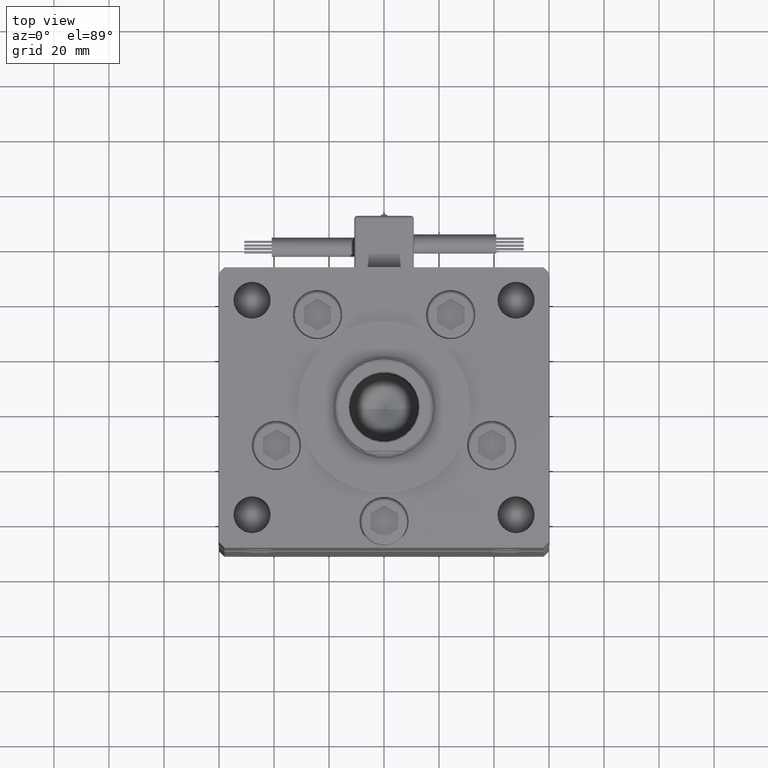
[diagram: clean part render]
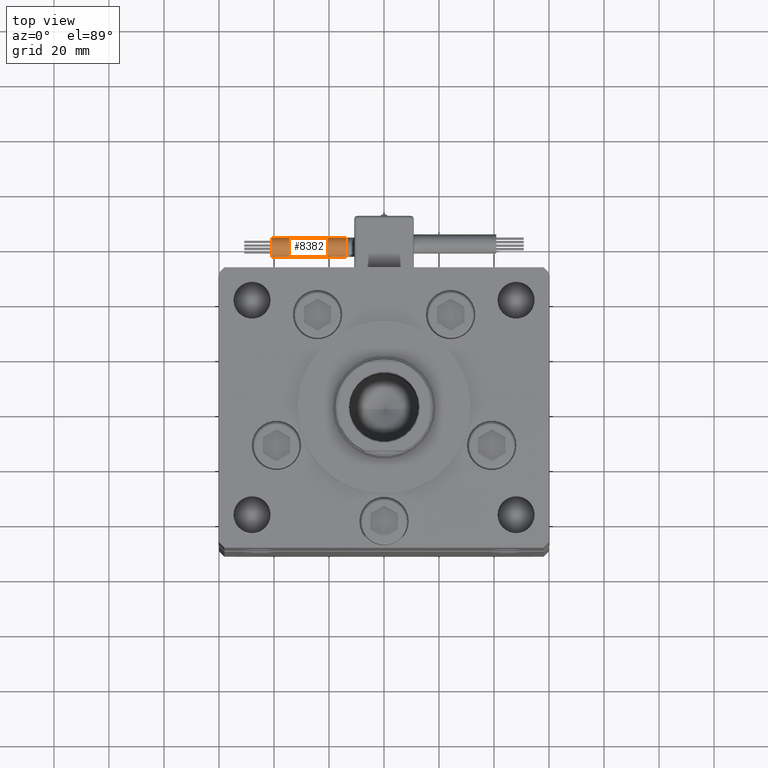
[diagram: same view with one face highlighted and labeled with its STEP entity id]
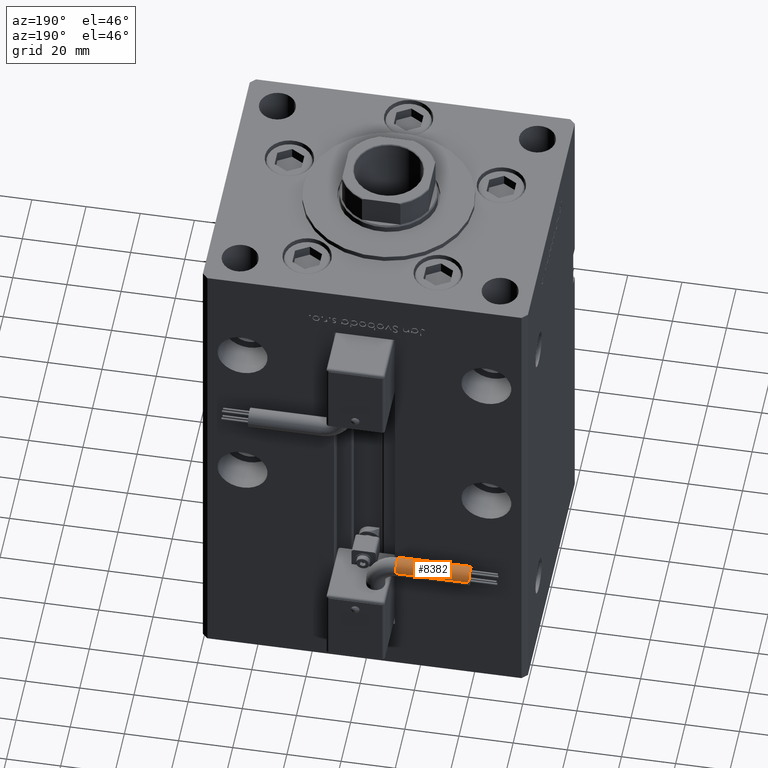
[diagram: same view with one face highlighted and labeled with its STEP entity id]
A machine part, top view. The second image highlights one B-rep face of the part: STEP entity #8382.
A second angle (auxiliary view) of the same face is appended — the face is thin or edge-on in the first view.
In plain terms, the highlighted cylindrical surface (edge-blend (fillet) strip) has radius 3.5 mm, axis along (-1, -0, -0).
Its self-contained STEP definition (entity closure, byte-faithful):
#2350 = CARTESIAN_POINT ( 'NONE',  ( 40.80000000000000426, 38.50000000000000000, -65.00000000000000000 ) ) ;
#8382 = ADVANCED_FACE ( 'NONE', ( #55064 ), #29142, .T. ) ;
#10220 = AXIS2_PLACEMENT_3D ( 'NONE', #15431, #32842, #50197 ) ;
#14422 = AXIS2_PLACEMENT_3D ( 'NONE', #50195, #28567, #45933 ) ;
#15431 = CARTESIAN_POINT ( 'NONE',  ( 13.79999999999999893, 42.00000000000000000, -65.00000000000000000 ) ) ;
#16628 = LINE ( 'NONE', #51942, #52226 ) ;
#16952 = AXIS2_PLACEMENT_3D ( 'NONE', #31330, #18487, #40145 ) ;
#18487 = DIRECTION ( 'NONE',  ( 1.000000000000000000, 0.000000000000000000, 2.220446049250000002E-16 ) ) ;
#19543 = CARTESIAN_POINT ( 'NONE',  ( 13.79999999999999893, 38.50000000000000000, -65.00000000000000000 ) ) ;
#19919 = DIRECTION ( 'NONE',  ( 0.000000000000000000, 0.000000000000000000, -1.000000000000000000 ) ) ;
#20109 = VERTEX_POINT ( 'NONE', #19543 ) ;
#21723 = CIRCLE ( 'NONE', #14422, 3.500000000000003109 ) ;
#27344 = DIRECTION ( 'NONE',  ( 1.000000000000000000, 0.000000000000000000, 2.220446049250000002E-16 ) ) ;
#27451 = VERTEX_POINT ( 'NONE', #49683 ) ;
#28567 = DIRECTION ( 'NONE',  ( 1.000000000000000000, 0.000000000000000000, 2.220446049250000002E-16 ) ) ;
#29142 = CYLINDRICAL_SURFACE ( 'NONE', #10220, 3.500000000000003109 ) ;
#29596 = CIRCLE ( 'NONE', #55070, 3.500000000000003109 ) ;
#29990 = VERTEX_POINT ( 'NONE', #40340 ) ;
#30313 = DIRECTION ( 'NONE',  ( 1.000000000000000000, -2.599999999999999847E-16, 2.220446049250000002E-16 ) ) ;
#31239 = ORIENTED_EDGE ( 'NONE', *, *, #34783, .F. ) ;
#31330 = CARTESIAN_POINT ( 'NONE',  ( 13.79999999999999893, 42.00000000000000000, -65.00000000000000000 ) ) ;
#32842 = DIRECTION ( 'NONE',  ( 1.000000000000000000, -2.599999999999999847E-16, 2.220446049250000002E-16 ) ) ;
#32905 = VERTEX_POINT ( 'NONE', #52213 ) ;
#33119 = EDGE_CURVE ( 'NONE', #55223, #29990, #21723, .T. ) ;
#34446 = ORIENTED_EDGE ( 'NONE', *, *, #42658, .T. ) ;
#34783 = EDGE_CURVE ( 'NONE', #20109, #55223, #37821, .T. ) ;
#36051 = CIRCLE ( 'NONE', #16952, 3.500000000000003109 ) ;
#37164 = DIRECTION ( 'NONE',  ( 1.000000000000000000, -2.599999999999999847E-16, 2.220446049250000002E-16 ) ) ;
#37821 = LINE ( 'NONE', #42659, #52745 ) ;
#38173 = ORIENTED_EDGE ( 'NONE', *, *, #33119, .F. ) ;
#40145 = DIRECTION ( 'NONE',  ( 0.000000000000000000, 0.000000000000000000, -1.000000000000000000 ) ) ;
#40302 = EDGE_LOOP ( 'NONE', ( #40486, #48472, #34446, #38173, #31239 ) ) ;
#40340 = CARTESIAN_POINT ( 'NONE',  ( 40.80000000000000426, 45.50000000000000711, -65.00000000000000000 ) ) ;
#40486 = ORIENTED_EDGE ( 'NONE', *, *, #51460, .T. ) ;
#41282 = CARTESIAN_POINT ( 'NONE',  ( 13.79999999999999893, 42.00000000000000000, -65.00000000000000000 ) ) ;
#42658 = EDGE_CURVE ( 'NONE', #27451, #29990, #16628, .T. ) ;
#42659 = CARTESIAN_POINT ( 'NONE',  ( 13.79999999999999716, 38.50000000000000000, -65.00000000000000000 ) ) ;
#45933 = DIRECTION ( 'NONE',  ( 0.000000000000000000, 0.000000000000000000, -1.000000000000000000 ) ) ;
#47565 = EDGE_CURVE ( 'NONE', #32905, #27451, #29596, .T. ) ;
#48472 = ORIENTED_EDGE ( 'NONE', *, *, #47565, .T. ) ;
#49683 = CARTESIAN_POINT ( 'NONE',  ( 13.79999999999999893, 45.50000000000000711, -65.00000000000000000 ) ) ;
#50195 = CARTESIAN_POINT ( 'NONE',  ( 40.80000000000000426, 42.00000000000000000, -65.00000000000000000 ) ) ;
#50197 = DIRECTION ( 'NONE',  ( -4.956352788505158337E-16, -1.000000000000000000, 0.000000000000000000 ) ) ;
#51460 = EDGE_CURVE ( 'NONE', #20109, #32905, #36051, .T. ) ;
#51942 = CARTESIAN_POINT ( 'NONE',  ( 13.80000000000000071, 45.50000000000000711, -65.00000000000000000 ) ) ;
#52213 = CARTESIAN_POINT ( 'NONE',  ( 13.79999999999999893, 42.00000000000000000, -68.50000000000000000 ) ) ;
#52226 = VECTOR ( 'NONE', #30313, 1000.000000000000000 ) ;
#52745 = VECTOR ( 'NONE', #37164, 1000.000000000000000 ) ;
#55064 = FACE_OUTER_BOUND ( 'NONE', #40302, .T. ) ;
#55070 = AXIS2_PLACEMENT_3D ( 'NONE', #41282, #27344, #19919 ) ;
#55223 = VERTEX_POINT ( 'NONE', #2350 ) ;